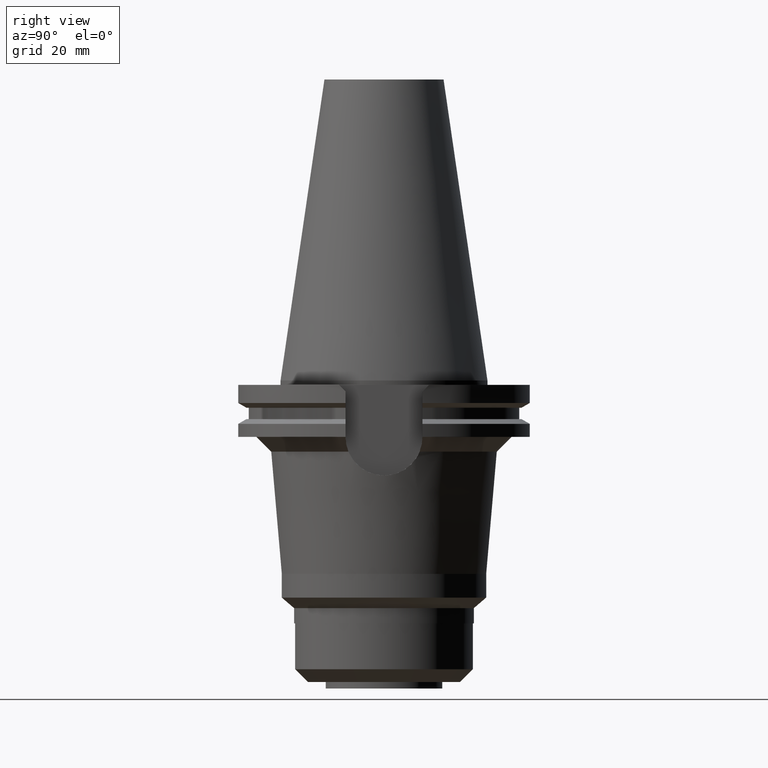
[diagram: clean part render]
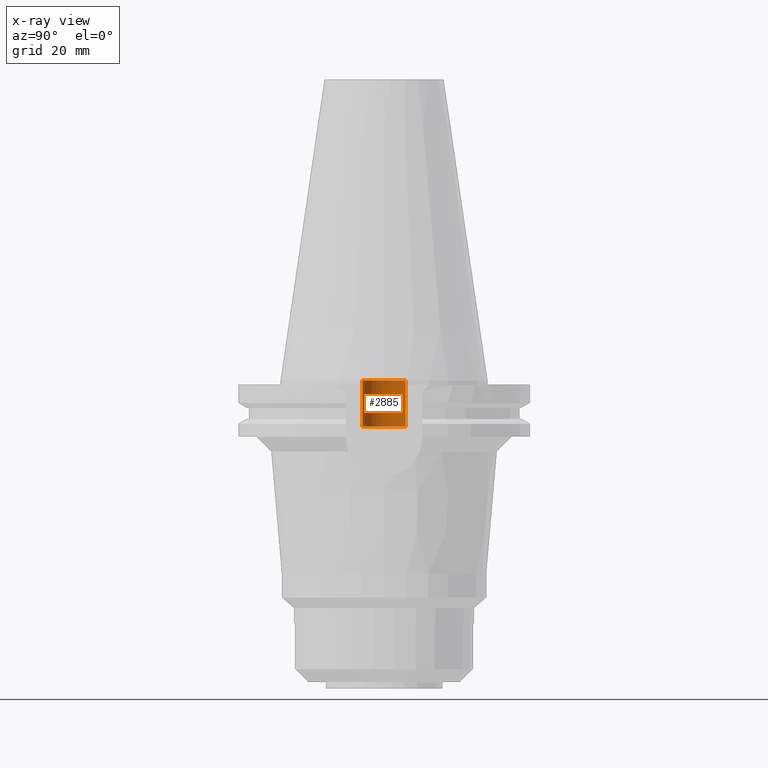
[diagram: x-ray — body ghosted, one internal face saturated and labeled with its STEP entity id]
A machine part, right view, then the same camera in x-ray: the body is ghosted and one INTERNAL B-rep face — a face not visible from any outside direction — is saturated and labeled: STEP entity #2885.
In plain terms, the highlighted cylindrical surface (edge-blend (fillet) strip) has radius 7.25 mm, axis along (0, 0, -1).
Its self-contained STEP definition (entity closure, byte-faithful):
#1419=CARTESIAN_POINT('',(0.E0,1.370134838886E-14,-1.56E1));
#1420=DIRECTION('',(0.E0,0.E0,-1.E0));
#1421=DIRECTION('',(0.E0,-1.E0,0.E0));
#1422=AXIS2_PLACEMENT_3D('',#1419,#1420,#1421);
#1435=DIRECTION('',(0.E0,0.E0,1.E0));
#1436=VECTOR('',#1435,1.56E1);
#1437=CARTESIAN_POINT('',(0.E0,-7.25E0,-1.56E1));
#1438=LINE('',#1437,#1436);
#1442=CARTESIAN_POINT('',(0.E0,1.370134838886E-14,-9.947598300641E-14));
#1443=DIRECTION('',(0.E0,0.E0,-1.E0));
#1444=DIRECTION('',(0.E0,-1.E0,0.E0));
#1445=AXIS2_PLACEMENT_3D('',#1442,#1443,#1444);
#1450=DIRECTION('',(0.E0,0.E0,1.E0));
#1451=VECTOR('',#1450,1.56E1);
#1452=CARTESIAN_POINT('',(0.E0,7.25E0,-1.56E1));
#1453=LINE('',#1452,#1451);
#1595=CARTESIAN_POINT('',(0.E0,7.25E0,-9.947598300641E-14));
#1596=VERTEX_POINT('',#1595);
#1597=CARTESIAN_POINT('',(0.E0,-7.25E0,-9.947598300641E-14));
#1598=VERTEX_POINT('',#1597);
#1599=CARTESIAN_POINT('',(0.E0,7.25E0,-1.56E1));
#1600=VERTEX_POINT('',#1599);
#1601=CARTESIAN_POINT('',(0.E0,-7.25E0,-1.56E1));
#1602=VERTEX_POINT('',#1601);
#2871=CARTESIAN_POINT('',(0.E0,1.370134838886E-14,1.1188E2));
#2872=DIRECTION('',(0.E0,0.E0,-1.E0));
#2873=DIRECTION('',(0.E0,-1.E0,0.E0));
#2874=AXIS2_PLACEMENT_3D('',#2871,#2872,#2873);
#2875=CYLINDRICAL_SURFACE('',#2874,7.25E0);
#2877=ORIENTED_EDGE('',*,*,#2876,.F.);
#2878=ORIENTED_EDGE('',*,*,#2864,.F.);
#2880=ORIENTED_EDGE('',*,*,#2879,.T.);
#2882=ORIENTED_EDGE('',*,*,#2881,.T.);
#2883=EDGE_LOOP('',(#2877,#2878,#2880,#2882));
#2884=FACE_OUTER_BOUND('',#2883,.F.);
#1423=CIRCLE('',#1422,7.25E0);
#1446=CIRCLE('',#1445,7.25E0);
#2864=EDGE_CURVE('',#1602,#1600,#1423,.T.);
#2876=EDGE_CURVE('',#1600,#1596,#1453,.T.);
#2879=EDGE_CURVE('',#1602,#1598,#1438,.T.);
#2881=EDGE_CURVE('',#1598,#1596,#1446,.T.);
#2885=ADVANCED_FACE('',(#2884),#2875,.F.);